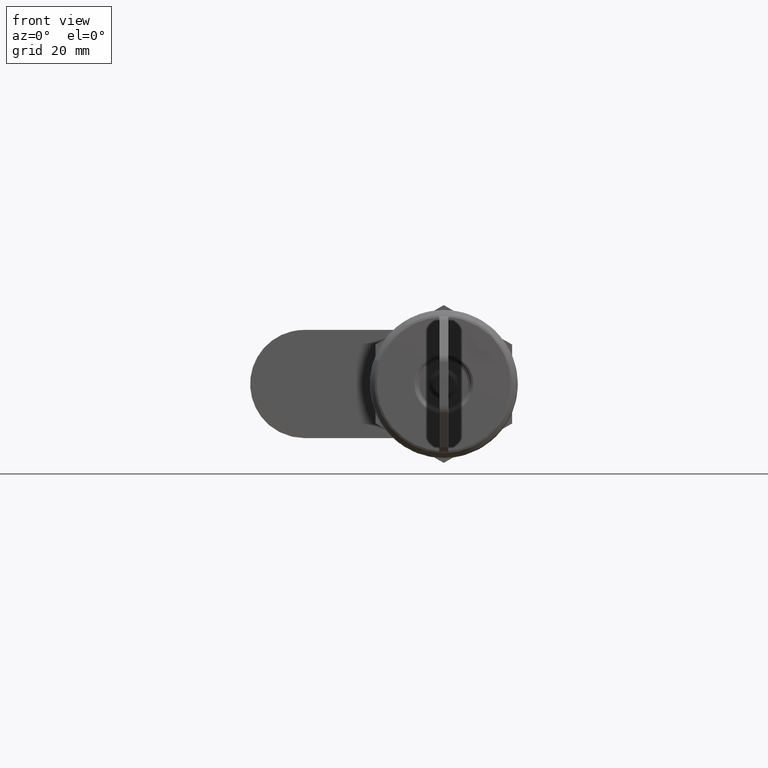
[diagram: clean part render]
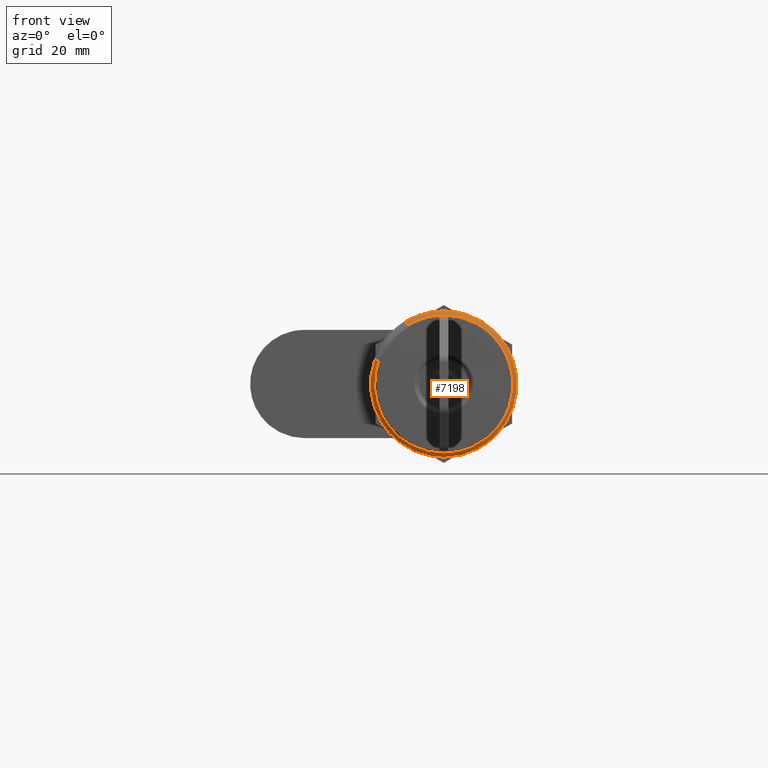
[diagram: same view with one face highlighted and labeled with its STEP entity id]
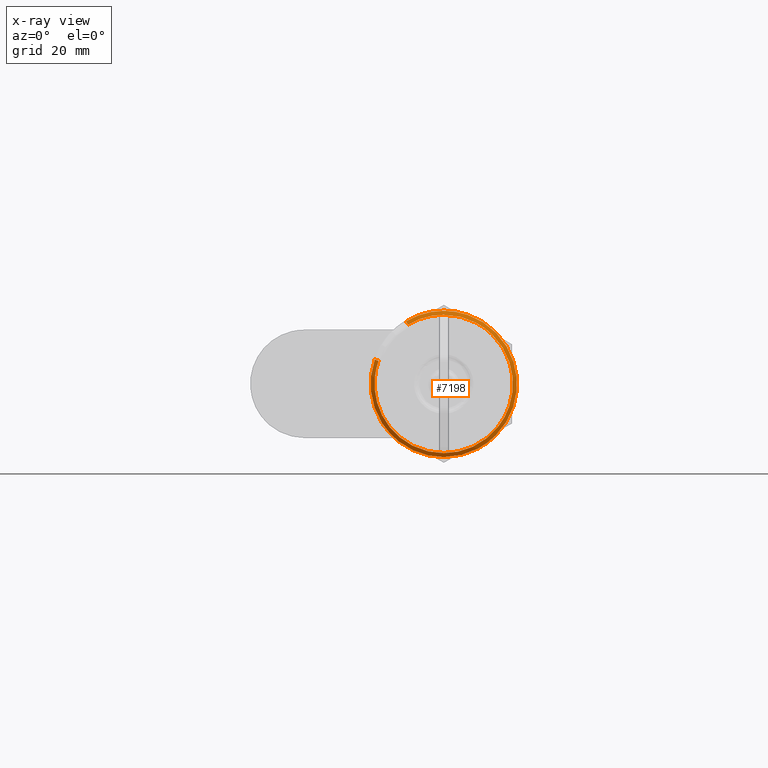
[diagram: x-ray of the same camera — body ghosted, the highlighted face saturated]
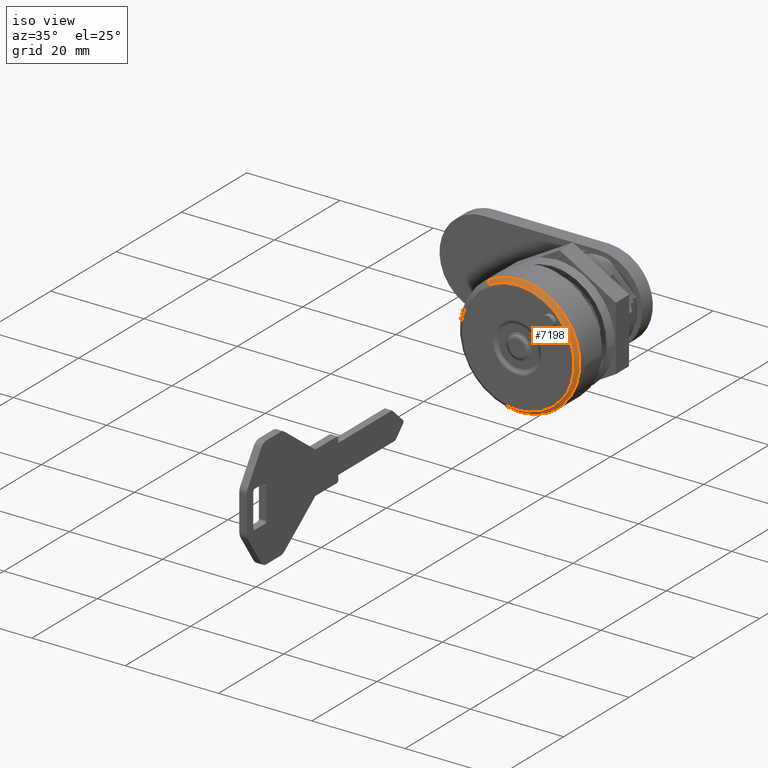
[diagram: same view with one face highlighted and labeled with its STEP entity id]
A machine part, front view. The second image highlights one B-rep face of the part: STEP entity #7198.
The next image is the same camera in x-ray: the body ghosted, the highlighted face saturated — about 0% of this face is hidden behind the body in this view.
A second angle (iso view) of the same face is appended — the face is thin or edge-on in the first view.
In plain terms, the highlighted face is a freeform B-spline surface patch.
Its self-contained STEP definition (entity closure, byte-faithful):
#6998=CARTESIAN_POINT('',(0.128768937900927,6.281429438623104,10.375484574543568));
#6999=CARTESIAN_POINT('',(0.128768937900927,1.366858185963029,13.350818625004331));
#7000=CARTESIAN_POINT('',(0.128768937900928,-4.048666265532861,11.433080836735510));
#7001=CARTESIAN_POINT('',(0.128768937900927,-15.481747102268374,7.384414571202647));
#7002=CARTESIAN_POINT('',(0.128768937900928,-11.433080836735510,-4.048666265532861));
#7003=CARTESIAN_POINT('',(0.128768937900927,-7.384414571202647,-15.481747102268374));
#7004=CARTESIAN_POINT('',(0.128768937900928,4.048666265532861,-11.433080836735510));
#7005=CARTESIAN_POINT('',(0.128768937900927,15.481747102268374,-7.384414571202647));
#7006=CARTESIAN_POINT('',(0.128768937900928,11.433080836735510,4.048666265532861));
#7007=CARTESIAN_POINT('',(0.871673011930887,6.666175783827287,11.010997527253425));
#7008=CARTESIAN_POINT('',(0.871673011930887,1.450580163038516,14.168574952866580));
#7009=CARTESIAN_POINT('',(0.871673011930887,-4.296652741196700,12.133373040817350));
#7010=CARTESIAN_POINT('',(0.871673011930887,-16.430025782014045,7.836720299620651));
#7011=CARTESIAN_POINT('',(0.871673011930887,-12.133373040817350,-4.296652741196700));
#7012=CARTESIAN_POINT('',(0.871673011930887,-7.836720299620651,-16.430025782014045));
#7013=CARTESIAN_POINT('',(0.871673011930887,4.296652741196700,-12.133373040817350));
#7014=CARTESIAN_POINT('',(0.871673011930887,16.430025782014045,-7.836720299620651));
#7015=CARTESIAN_POINT('',(0.871673011930887,12.133373040817350,4.296652741196700));
#7023=(BOUNDED_SURFACE()B_SPLINE_SURFACE(2,1,((#6998,#7007),(#6999,#7008),(#7000,#7009),(#7001,#7010),(#7002,#7011),(#7003,#7012),(#7004,#7013),(#7005,#7014),(#7006,#7015)),.UNSPECIFIED.,.F.,.F.,.U.)B_SPLINE_SURFACE_WITH_KNOTS((3,2,2,2,3),(2,2),(0.0,11.942832231620550,33.269318359514394,54.595804487408238,75.922290615302089),(0.0,1.0),.UNSPECIFIED.)GEOMETRIC_REPRESENTATION_ITEM()RATIONAL_B_SPLINE_SURFACE(((0.855662221768731,0.855662221768731),(0.835979797464467,0.835979797464467),(1.0,1.0),(0.707106781186548,0.707106781186548),(1.0,1.0),(0.707106781186548,0.707106781186548),(1.0,1.0),(0.707106781186548,0.707106781186548),(1.0,1.0)))REPRESENTATION_ITEM('')SURFACE());
#7024=CARTESIAN_POINT('',(0.853553390593455,0.0,12.853553390593319));
#7025=VERTEX_POINT('',#7024);
#7026=CARTESIAN_POINT('',(0.853553390598943,6.656791721649135,10.995497202926190));
#7027=VERTEX_POINT('',#7026);
#7028=CARTESIAN_POINT('',(0.853553390593455,0.0,12.853553390593319));
#7029=CARTESIAN_POINT('',(0.853553390593455,3.587707924471340,12.853553390593312));
#7030=CARTESIAN_POINT('',(0.853553390598943,6.656791721649135,10.995497202926188));
#7038=(BOUNDED_CURVE()B_SPLINE_CURVE(2,(#7028,#7029,#7030),.UNSPECIFIED.,.F.,.U.)B_SPLINE_CURVE_WITH_KNOTS((3,3),(0.0,0.088457389892420),.UNSPECIFIED.)CURVE()GEOMETRIC_REPRESENTATION_ITEM()RATIONAL_B_SPLINE_CURVE((1.0,0.896365721386290,0.866069185089001))REPRESENTATION_ITEM(''));
#7039=EDGE_CURVE('',#7025,#7027,#7038,.T.);
#7040=ORIENTED_EDGE('',*,*,#7039,.T.);
#7041=CARTESIAN_POINT('',(0.146446609415815,6.290584617392190,10.390606835349880));
#7042=VERTEX_POINT('',#7041);
#7043=CARTESIAN_POINT('',(0.146446609415815,6.290584617392190,10.390606835349880));
#7044=CARTESIAN_POINT('',(0.853553390598943,6.656791721649135,10.995497202926190));
#7045=QUASI_UNIFORM_CURVE('',1,(#7043,#7044),.UNSPECIFIED.,.F.,.U.);
#7046=EDGE_CURVE('',#7042,#7027,#7045,.T.);
#7047=ORIENTED_EDGE('',*,*,#7046,.F.);
#7048=CARTESIAN_POINT('',(0.146446609406780,0.0,12.146446609406860));
#7049=VERTEX_POINT('',#7048);
#7050=CARTESIAN_POINT('',(0.146446609415815,6.290584617392190,10.390606835349882));
#7051=CARTESIAN_POINT('',(0.146446609406780,3.390338953859444,12.146446609406860));
#7052=CARTESIAN_POINT('',(0.146446609406780,0.0,12.146446609406860));
#7060=(BOUNDED_CURVE()B_SPLINE_CURVE(2,(#7050,#7051,#7052),.UNSPECIFIED.,.F.,.U.)B_SPLINE_CURVE_WITH_KNOTS((3,3),(0.911542610105936,1.0),.UNSPECIFIED.)CURVE()GEOMETRIC_REPRESENTATION_ITEM()RATIONAL_B_SPLINE_CURVE((0.866069185087875,0.896365721384364,1.0))REPRESENTATION_ITEM(''));
#7061=EDGE_CURVE('',#7042,#7049,#7060,.T.);
#7062=ORIENTED_EDGE('',*,*,#7061,.T.);
#7063=CARTESIAN_POINT('',(0.146446607717226,-8.534700342077731,8.642630112706755));
#7064=VERTEX_POINT('',#7063);
#7065=CARTESIAN_POINT('',(0.146446609406780,0.0,12.146446609406860));
#7066=CARTESIAN_POINT('',(0.146446609406780,-4.986574604850960,12.146446609406858));
#7067=CARTESIAN_POINT('',(0.146446607717226,-8.534700342077731,8.642630112706755));
#7075=(BOUNDED_CURVE()B_SPLINE_CURVE(2,(#7065,#7066,#7067),.UNSPECIFIED.,.F.,.U.)B_SPLINE_CURVE_WITH_KNOTS((3,3),(0.0,0.124051937432093),.UNSPECIFIED.)CURVE()GEOMETRIC_REPRESENTATION_ITEM()RATIONAL_B_SPLINE_CURVE((1.0,0.854664114981878,0.853561814883002))REPRESENTATION_ITEM(''));
#7076=EDGE_CURVE('',#7049,#7064,#7075,.T.);
#7077=ORIENTED_EDGE('',*,*,#7076,.T.);
#7078=CARTESIAN_POINT('',(0.146446609108044,-9.570277679295657,-7.479702558864866));
#7079=VERTEX_POINT('',#7078);
#7080=CARTESIAN_POINT('',(0.146446607717226,-8.534700342077731,8.642630112706755));
#7081=CARTESIAN_POINT('',(0.146446609406780,-12.146446609406865,5.075987588292521));
#7082=CARTESIAN_POINT('',(0.146446609406780,-12.146446609406860,0.0));
#7083=CARTESIAN_POINT('',(0.146446609406780,-12.146446609406860,-4.183495014212358));
#7084=CARTESIAN_POINT('',(0.146446609108044,-9.570277679295657,-7.479702558864865));
#7092=(BOUNDED_CURVE()B_SPLINE_CURVE(2,(#7080,#7081,#7082,#7083,#7084),.UNSPECIFIED.,.F.,.U.)B_SPLINE_CURVE_WITH_KNOTS((3,2,3),(0.124051937432093,0.250000000000000,0.356567917885162),.UNSPECIFIED.)CURVE()GEOMETRIC_REPRESENTATION_ITEM()RATIONAL_B_SPLINE_CURVE((0.853561814883002,0.852442666204670,1.0,0.875147918033469,0.856737647417344))REPRESENTATION_ITEM(''));
#7093=EDGE_CURVE('',#7064,#7079,#7092,.T.);
#7094=ORIENTED_EDGE('',*,*,#7093,.T.);
#7095=CARTESIAN_POINT('',(0.146446609406780,0.0,-12.146446609406860));
#7096=VERTEX_POINT('',#7095);
#7097=CARTESIAN_POINT('',(0.146446609108044,-9.570277679295657,-7.479702558864865));
#7098=CARTESIAN_POINT('',(0.146446609406780,-5.922958491439163,-12.146446609406862));
#7099=CARTESIAN_POINT('',(0.146446609406780,0.0,-12.146446609406860));
#7107=(BOUNDED_CURVE()B_SPLINE_CURVE(2,(#7097,#7098,#7099),.UNSPECIFIED.,.F.,.U.)B_SPLINE_CURVE_WITH_KNOTS((3,3),(0.356567917885162,0.500000000000000),.UNSPECIFIED.)CURVE()GEOMETRIC_REPRESENTATION_ITEM()RATIONAL_B_SPLINE_CURVE((0.856737647417344,0.831958863153079,1.0))REPRESENTATION_ITEM(''));
#7108=EDGE_CURVE('',#7079,#7096,#7107,.T.);
#7109=ORIENTED_EDGE('',*,*,#7108,.T.);
#7110=CARTESIAN_POINT('',(0.146446609434985,11.449744543293621,4.054567193816707));
#7111=VERTEX_POINT('',#7110);
#7112=CARTESIAN_POINT('',(0.146446609406780,0.0,-12.146446609406860));
#7113=CARTESIAN_POINT('',(0.146446609406780,12.146446609406860,-12.146446609406860));
#7114=CARTESIAN_POINT('',(0.146446609406780,12.146446609406860,0.0));
#7115=CARTESIAN_POINT('',(0.146446609406780,12.146446609406867,2.087141252105776));
#7116=CARTESIAN_POINT('',(0.146446609434985,11.449744543293619,4.054567193816707));
#7124=(BOUNDED_CURVE()B_SPLINE_CURVE(2,(#7112,#7113,#7114,#7115,#7116),.UNSPECIFIED.,.F.,.U.)B_SPLINE_CURVE_WITH_KNOTS((3,2,3),(0.500000000000000,0.750000000000000,0.806714905430128),.UNSPECIFIED.)CURVE()GEOMETRIC_REPRESENTATION_ITEM()RATIONAL_B_SPLINE_CURVE((1.0,0.707106781186547,1.0,0.933554355175477,0.897256378050688))REPRESENTATION_ITEM(''));
#7125=EDGE_CURVE('',#7096,#7111,#7124,.T.);
#7126=ORIENTED_EDGE('',*,*,#7125,.T.);
#7127=CARTESIAN_POINT('',(0.853553390603140,12.116292733917721,4.290604287404591));
#7128=VERTEX_POINT('',#7127);
#7129=CARTESIAN_POINT('',(0.146446609434985,11.449744543293621,4.054567193816707));
#7130=CARTESIAN_POINT('',(0.853553390603140,12.116292733917721,4.290604287404591));
#7131=QUASI_UNIFORM_CURVE('',1,(#7129,#7130),.UNSPECIFIED.,.F.,.U.);
#7132=EDGE_CURVE('',#7111,#7128,#7131,.T.);
#7133=ORIENTED_EDGE('',*,*,#7132,.T.);
#7134=CARTESIAN_POINT('',(0.853553400369181,7.915134306680492,-10.127412498923320));
#7135=VERTEX_POINT('',#7134);
#7136=CARTESIAN_POINT('',(0.853553390603140,12.116292733917719,4.290604287404591));
#7137=CARTESIAN_POINT('',(0.853553390593455,12.853553390593321,2.208644419045303));
#7138=CARTESIAN_POINT('',(0.853553390593455,12.853553390593319,0.0));
#7139=CARTESIAN_POINT('',(0.853553390593455,12.853553390593319,-6.267764198610538));
#7140=CARTESIAN_POINT('',(0.853553400369181,7.915134306680492,-10.127412498923315));
#7148=(BOUNDED_CURVE()B_SPLINE_CURVE(2,(#7136,#7137,#7138,#7139,#7140),.UNSPECIFIED.,.F.,.U.)B_SPLINE_CURVE_WITH_KNOTS((3,2,3),(0.193285094574911,0.250000000000000,0.393432082112947),.UNSPECIFIED.)CURVE()GEOMETRIC_REPRESENTATION_ITEM()RATIONAL_B_SPLINE_CURVE((0.897256378057138,0.933554355181381,1.0,0.831958863155295,0.856737647416691))REPRESENTATION_ITEM(''));
#7149=EDGE_CURVE('',#7128,#7135,#7148,.T.);
#7150=ORIENTED_EDGE('',*,*,#7149,.T.);
#7151=CARTESIAN_POINT('',(0.853553390593455,0.0,-12.853553390593319));
#7152=VERTEX_POINT('',#7151);
#7153=CARTESIAN_POINT('',(0.853553400369181,7.915134306680492,-10.127412498923315));
#7154=CARTESIAN_POINT('',(0.853553390593455,4.427037655926911,-12.853553390593326));
#7155=CARTESIAN_POINT('',(0.853553390593455,0.0,-12.853553390593319));
#7163=(BOUNDED_CURVE()B_SPLINE_CURVE(2,(#7153,#7154,#7155),.UNSPECIFIED.,.F.,.U.)B_SPLINE_CURVE_WITH_KNOTS((3,3),(0.393432082112947,0.500000000000000),.UNSPECIFIED.)CURVE()GEOMETRIC_REPRESENTATION_ITEM()RATIONAL_B_SPLINE_CURVE((0.856737647416691,0.875147918031253,1.0))REPRESENTATION_ITEM(''));
#7164=EDGE_CURVE('',#7135,#7152,#7163,.T.);
#7165=ORIENTED_EDGE('',*,*,#7164,.T.);
#7166=CARTESIAN_POINT('',(0.853553400228439,-9.145761823175693,-9.031548908479797));
#7167=VERTEX_POINT('',#7166);
#7168=CARTESIAN_POINT('',(0.853553390593455,0.0,-12.853553390593319));
#7169=CARTESIAN_POINT('',(0.853553390593455,-5.371486787385785,-12.853553390593316));
#7170=CARTESIAN_POINT('',(0.853553400228439,-9.145761823175693,-9.031548908479797));
#7178=(BOUNDED_CURVE()B_SPLINE_CURVE(2,(#7168,#7169,#7170),.UNSPECIFIED.,.F.,.U.)B_SPLINE_CURVE_WITH_KNOTS((3,3),(0.500000000000000,0.625948062567922),.UNSPECIFIED.)CURVE()GEOMETRIC_REPRESENTATION_ITEM()RATIONAL_B_SPLINE_CURVE((1.0,0.852442666204653,0.853561814883003))REPRESENTATION_ITEM(''));
#7179=EDGE_CURVE('',#7152,#7167,#7178,.T.);
#7180=ORIENTED_EDGE('',*,*,#7179,.T.);
#7181=CARTESIAN_POINT('',(0.853553400228439,-9.145761823175693,-9.031548908479797));
#7182=CARTESIAN_POINT('',(0.853553390593455,-12.853553390593321,-5.276868616866167));
#7183=CARTESIAN_POINT('',(0.853553390593455,-12.853553390593319,0.0));
#7184=CARTESIAN_POINT('',(0.853553390593455,-12.853553390593317,12.853553390593317));
#7185=CARTESIAN_POINT('',(0.853553390593455,0.0,12.853553390593319));
#7193=(BOUNDED_CURVE()B_SPLINE_CURVE(2,(#7181,#7182,#7183,#7184,#7185),.UNSPECIFIED.,.F.,.U.)B_SPLINE_CURVE_WITH_KNOTS((3,2,3),(0.625948062567922,0.750000000000000,1.0),.UNSPECIFIED.)CURVE()GEOMETRIC_REPRESENTATION_ITEM()RATIONAL_B_SPLINE_CURVE((0.853561814883003,0.854664114981895,1.0,0.707106781186547,1.0))REPRESENTATION_ITEM(''));
#7194=EDGE_CURVE('',#7167,#7025,#7193,.T.);
#7195=ORIENTED_EDGE('',*,*,#7194,.T.);
#7196=EDGE_LOOP('',(#7040,#7047,#7062,#7077,#7094,#7109,#7126,#7133,#7150,#7165,#7180,#7195));
#7197=FACE_OUTER_BOUND('',#7196,.T.);
#7198=ADVANCED_FACE('',(#7197),#7023,.T.);